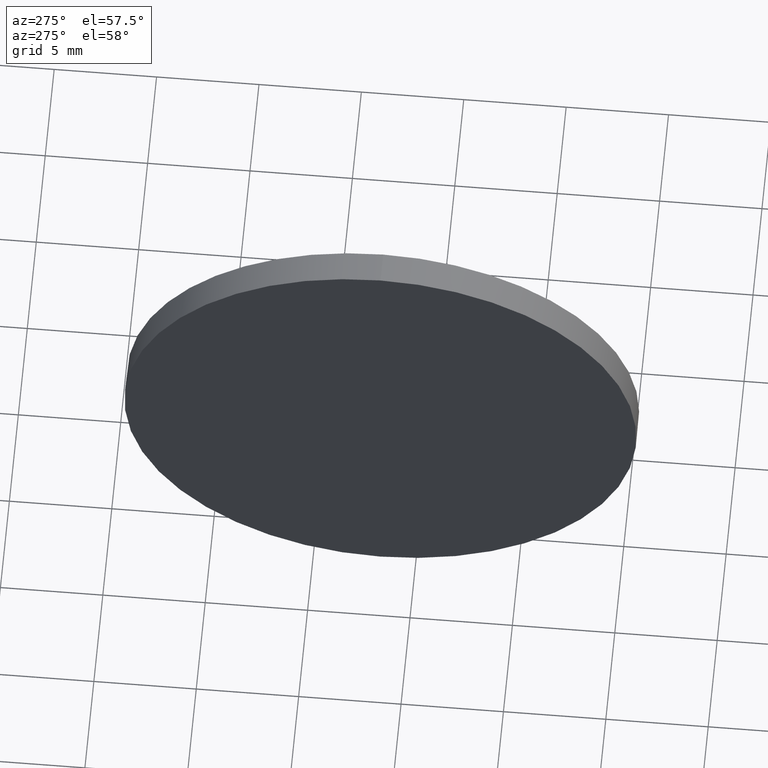
[diagram: clean part render]
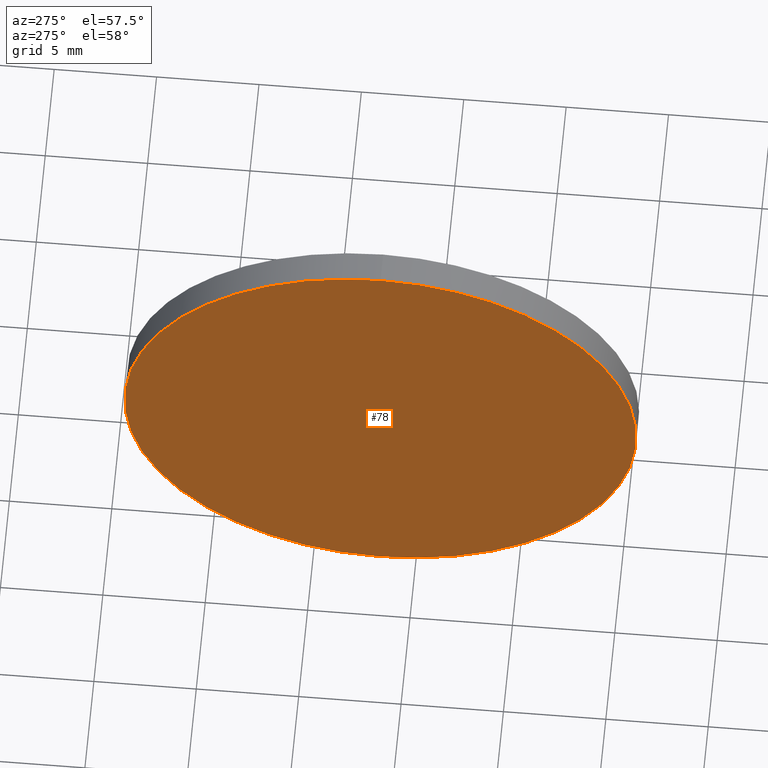
[diagram: same view with one face highlighted and labeled with its STEP entity id]
A machine part, auxiliary view. The second image highlights one B-rep face of the part: STEP entity #78.
In plain terms, the highlighted planar face has unit normal (1, 0, 0).
Its self-contained STEP definition (entity closure, byte-faithful):
#48 = ORIENTED_EDGE ( 'NONE', *, *, #66, .T. ) ;
#60 = DIRECTION ( 'NONE',  ( 0.0000000000000000000, 0.0000000000000000000, 1.000000000000000000 ) ) ;
#61 = AXIS2_PLACEMENT_3D ( 'NONE', #110, #75, #125 ) ;
#62 = DIRECTION ( 'NONE',  ( 0.0000000000000000000, 0.0000000000000000000, 1.000000000000000000 ) ) ;
#66 = EDGE_CURVE ( 'NONE', #176, #169, #152, .T. ) ;
#73 = PLANE ( 'NONE',  #61 ) ;
#74 = CIRCLE ( 'NONE', #116, 12.49999999999998400 ) ;
#75 = DIRECTION ( 'NONE',  ( 1.000000000000000000, 0.0000000000000000000, 0.0000000000000000000 ) ) ;
#77 = CARTESIAN_POINT ( 'NONE',  ( 668.0488725703303300, 221.7118161881164700, 0.0000000000000000000 ) ) ;
#78 = ADVANCED_FACE ( 'NONE', ( #159 ), #73, .F. ) ;
#93 = AXIS2_PLACEMENT_3D ( 'NONE', #106, #151, #60 ) ;
#105 = ORIENTED_EDGE ( 'NONE', *, *, #172, .T. ) ;
#106 = CARTESIAN_POINT ( 'NONE',  ( 668.0488725703303300, 221.7118161881164700, 0.0000000000000000000 ) ) ;
#110 = CARTESIAN_POINT ( 'NONE',  ( 668.0488725703303300, 221.7118161881164400, 0.0000000000000000000 ) ) ;
#111 = CARTESIAN_POINT ( 'NONE',  ( 668.0488725703303300, 221.7118161881164700, 12.49999999999998400 ) ) ;
#116 = AXIS2_PLACEMENT_3D ( 'NONE', #77, #153, #62 ) ;
#125 = DIRECTION ( 'NONE',  ( 0.0000000000000000000, 0.0000000000000000000, -1.000000000000000000 ) ) ;
#137 = CARTESIAN_POINT ( 'NONE',  ( 668.0488725703303300, 221.7118161881164700, -12.49999999999998400 ) ) ;
#151 = DIRECTION ( 'NONE',  ( -1.000000000000000000, -0.0000000000000000000, -0.0000000000000000000 ) ) ;
#152 = CIRCLE ( 'NONE', #93, 12.49999999999998400 ) ;
#153 = DIRECTION ( 'NONE',  ( -1.000000000000000000, -0.0000000000000000000, -0.0000000000000000000 ) ) ;
#159 = FACE_OUTER_BOUND ( 'NONE', #171, .T. ) ;
#169 = VERTEX_POINT ( 'NONE', #111 ) ;
#171 = EDGE_LOOP ( 'NONE', ( #105, #48 ) ) ;
#172 = EDGE_CURVE ( 'NONE', #169, #176, #74, .T. ) ;
#176 = VERTEX_POINT ( 'NONE', #137 ) ;